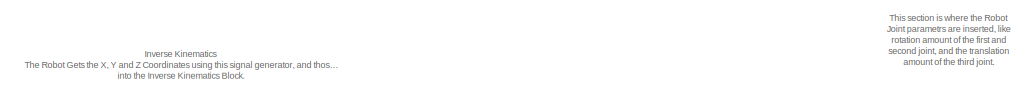
[diagram: root canvas - part 1/2, top left region]
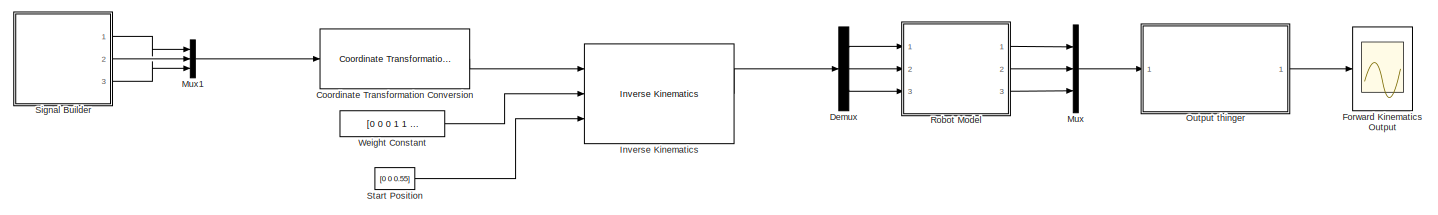
[diagram: root canvas - part 2/2, full width, bottom band]
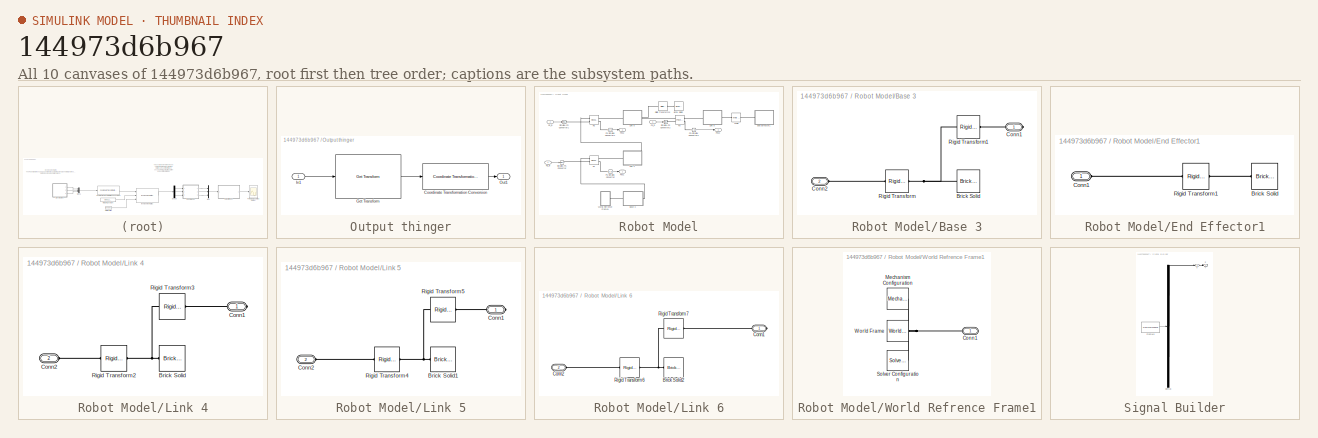
[diagram: thumbnail index - all 10 canvases of the model, root first then tree order]
MODEL slx_144973d6b967
KIND model
CONFIG AbsTol = auto
CONFIG EnableMultiTasking = off
CONFIG FixedStep = auto
CONFIG MaxStep = auto
CONFIG MinStep = auto
CONFIG RelTol = 1e-3
CONFIG SampleTimeConstraint = Unconstrained
CONFIG Solver = VariableStepAuto
CONFIG SolverName = VariableStepAuto
CONFIG StartTime = 0.0
CONFIG StopTime = 5
BLOCK [Reference] Coordinate Transformation Conversion  REF=robotcorelib/Coordinate Transformation Conversion
  Ports = [1, 1]
  SourceBlock = robotcorelib/Coordinate Transformation Conversion
  SourceProductBaseCode = RO
  SourceProductName = Robotics System Toolbox
  SourceType = robotics.slcore.internal.block.CoordinateTransformationConversion
BLOCK [Demux] Demux
  DisplayOption = bar
  Outputs = 3
  Ports = [1, 3]
BLOCK [Scope] Forward Kinematics Output
  Floating = off
  NumInputPorts = 1
  Ports = [1]
  ScopeSpecificationString = Simulink.scopes.TimeScopeBlockCfg('CurrentConfiguration', extmgr.ConfigurationSet(extmgr.Configuration('Core','General UI',true),extmgr.Configuration('Core','Source UI',true),extmgr.Configuration('Sources','WiredSimulink',true),extmgr.Configuration('Visuals','Time Domain',true,'SerializedDisplays',{struct('MinYLimReal','-0.49918','MaxYLimReal','0.25735','YLabelReal','','MinYLimMag','0.00000','MaxY...<+1398ch>
BLOCK [Reference] Inverse Kinematics  REF=robotmaniplib/Inverse Kinematics
  Ports = [3, 1]
  SourceBlock = robotmaniplib/Inverse Kinematics
  SourceProductBaseCode = RO
  SourceProductName = Robotics System Toolbox
  SourceType = Inverse Kinematics
BLOCK [Mux] Mux
  DisplayOption = bar
  Inputs = 3
  Ports = [3, 1]
BLOCK [Mux] Mux1
  DisplayOption = bar
  Inputs = 3
  Ports = [3, 1]
BLOCK [SubSystem] Output thinger
  Ports = [1, 1]
  RequestExecContextInheritance = off
BLOCK [Reference] Output thinger/Coordinate Transformation Conversion  REF=robotcorelib/Coordinate Transformation Conversion
  Ports = [1, 1]
  SourceBlock = robotcorelib/Coordinate Transformation Conversion
  SourceProductBaseCode = RO
  SourceProductName = Robotics System Toolbox
  SourceType = robotics.slcore.internal.block.CoordinateTransformationConversion
BLOCK [Reference] Output thinger/Get Transform  REF=robotmaniplib/Get Transform
  Ports = [1, 1]
  SourceBlock = robotmaniplib/Get Transform
  SourceProductBaseCode = RO
  SourceProductName = Robotics System Toolbox
  SourceType = Get Transform
BLOCK [Inport] Output thinger/In1
  IconDisplay = Port number
BLOCK [Outport] Output thinger/Out1
  IconDisplay = Port number
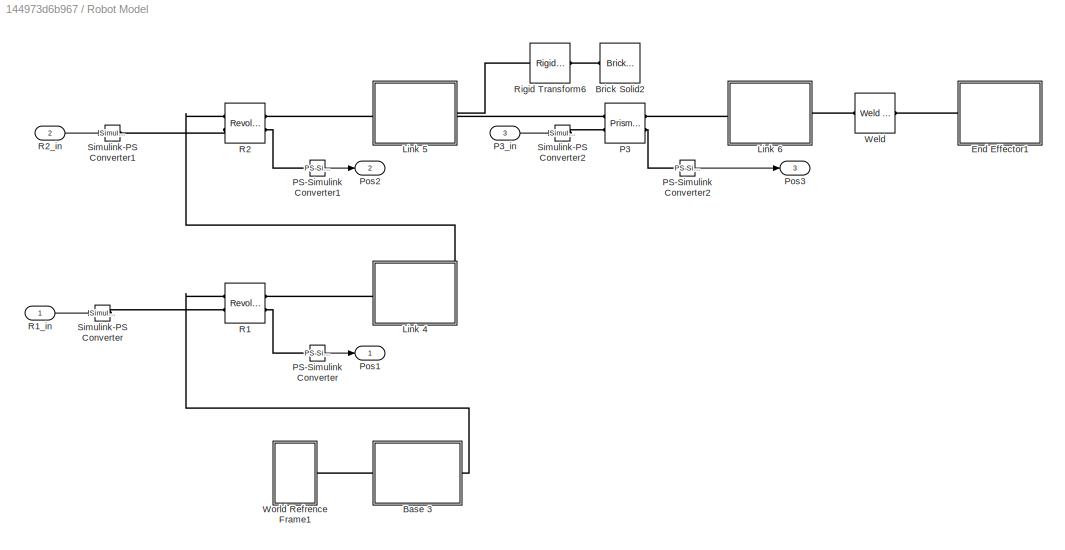
BLOCK [SubSystem] Robot Model
  Ports = [3, 3]
  RequestExecContextInheritance = off
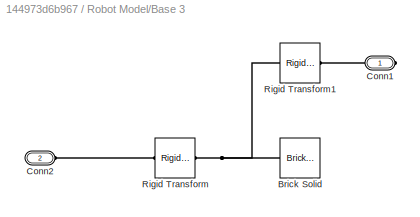
BLOCK [SubSystem] Robot Model/Base 3
  Ports = [0, 0, 0, 0, 0, 1, 1]
  RequestExecContextInheritance = off
BLOCK [Reference] Robot Model/Base 3/Brick Solid  REF=sm_lib/Body Elements/Brick Solid
  Ports = [0, 0, 0, 0, 0, 0, 1]
  SourceBlock = sm_lib/Body Elements/Brick Solid
  SourceProductBaseCode = MS
  SourceProductName = Simscape Multibody
  SourceType = Brick Solid
BLOCK [PMIOPort] Robot Model/Base 3/Conn1
  Side = Right
BLOCK [PMIOPort] Robot Model/Base 3/Conn2
  Port = 2
  Side = Left
BLOCK [Reference] Robot Model/Base 3/Rigid Transform  REF=sm_lib/Frames and
Transforms/Rigid
Transform
  Ports = [0, 0, 0, 0, 0, 1, 1]
  SourceBlock = sm_lib/Frames and\nTransforms/Rigid\nTransform
  SourceProductBaseCode = MS
  SourceProductName = Simscape Multibody
  SourceType = Rigid\nTransform
BLOCK [Reference] Robot Model/Base 3/Rigid Transform1  REF=sm_lib/Frames and
Transforms/Rigid
Transform
  Ports = [0, 0, 0, 0, 0, 1, 1]
  SourceBlock = sm_lib/Frames and\nTransforms/Rigid\nTransform
  SourceProductBaseCode = MS
  SourceProductName = Simscape Multibody
  SourceType = Rigid\nTransform
BLOCK [Reference] Robot Model/Brick Solid2  REF=sm_lib/Body Elements/Brick Solid
  Ports = [0, 0, 0, 0, 0, 0, 1]
  SourceBlock = sm_lib/Body Elements/Brick Solid
  SourceProductBaseCode = MS
  SourceProductName = Simscape Multibody
  SourceType = Brick Solid
BLOCK [SubSystem] Robot Model/End Effector1
  Ports = [0, 0, 0, 0, 0, 1]
  RequestExecContextInheritance = off
BLOCK [Reference] Robot Model/End Effector1/Brick Solid  REF=sm_lib/Body Elements/Brick Solid
  Ports = [0, 0, 0, 0, 0, 0, 1]
  SourceBlock = sm_lib/Body Elements/Brick Solid
  SourceProductBaseCode = MS
  SourceProductName = Simscape Multibody
  SourceType = Brick Solid
BLOCK [PMIOPort] Robot Model/End Effector1/Conn1
  Side = Left
BLOCK [Reference] Robot Model/End Effector1/Rigid Transform1  REF=sm_lib/Frames and
Transforms/Rigid
Transform
  Ports = [0, 0, 0, 0, 0, 1, 1]
  SourceBlock = sm_lib/Frames and\nTransforms/Rigid\nTransform
  SourceProductBaseCode = MS
  SourceProductName = Simscape Multibody
  SourceType = Rigid\nTransform
BLOCK [SubSystem] Robot Model/Link 4
  Ports = [0, 0, 0, 0, 0, 1, 1]
  RequestExecContextInheritance = off
BLOCK [Reference] Robot Model/Link 4/Brick Solid  REF=sm_lib/Body Elements/Brick Solid
  Ports = [0, 0, 0, 0, 0, 0, 1]
  SourceBlock = sm_lib/Body Elements/Brick Solid
  SourceProductBaseCode = MS
  SourceProductName = Simscape Multibody
  SourceType = Brick Solid
BLOCK [PMIOPort] Robot Model/Link 4/Conn1
  Side = Right
BLOCK [PMIOPort] Robot Model/Link 4/Conn2
  Port = 2
  Side = Left
BLOCK [Reference] Robot Model/Link 4/Rigid Transform2  REF=sm_lib/Frames and
Transforms/Rigid
Transform
  Ports = [0, 0, 0, 0, 0, 1, 1]
  SourceBlock = sm_lib/Frames and\nTransforms/Rigid\nTransform
  SourceProductBaseCode = MS
  SourceProductName = Simscape Multibody
  SourceType = Rigid\nTransform
BLOCK [Reference] Robot Model/Link 4/Rigid Transform3  REF=sm_lib/Frames and
Transforms/Rigid
Transform
  Ports = [0, 0, 0, 0, 0, 1, 1]
  SourceBlock = sm_lib/Frames and\nTransforms/Rigid\nTransform
  SourceProductBaseCode = MS
  SourceProductName = Simscape Multibody
  SourceType = Rigid\nTransform
BLOCK [SubSystem] Robot Model/Link 5
  Ports = [0, 0, 0, 0, 0, 1, 1]
  RequestExecContextInheritance = off
BLOCK [Reference] Robot Model/Link 5/Brick Solid1  REF=sm_lib/Body Elements/Brick Solid
  Ports = [0, 0, 0, 0, 0, 0, 1]
  SourceBlock = sm_lib/Body Elements/Brick Solid
  SourceProductBaseCode = MS
  SourceProductName = Simscape Multibody
  SourceType = Brick Solid
BLOCK [PMIOPort] Robot Model/Link 5/Conn1
  Side = Right
BLOCK [PMIOPort] Robot Model/Link 5/Conn2
  Port = 2
  Side = Left
BLOCK [Reference] Robot Model/Link 5/Rigid Transform4  REF=sm_lib/Frames and
Transforms/Rigid
Transform
  Ports = [0, 0, 0, 0, 0, 1, 1]
  SourceBlock = sm_lib/Frames and\nTransforms/Rigid\nTransform
  SourceProductBaseCode = MS
  SourceProductName = Simscape Multibody
  SourceType = Rigid\nTransform
BLOCK [Reference] Robot Model/Link 5/Rigid Transform5  REF=sm_lib/Frames and
Transforms/Rigid
Transform
  Ports = [0, 0, 0, 0, 0, 1, 1]
  SourceBlock = sm_lib/Frames and\nTransforms/Rigid\nTransform
  SourceProductBaseCode = MS
  SourceProductName = Simscape Multibody
  SourceType = Rigid\nTransform
BLOCK [SubSystem] Robot Model/Link 6
  Ports = [0, 0, 0, 0, 0, 1, 1]
  RequestExecContextInheritance = off
BLOCK [Reference] Robot Model/Link 6/Brick Solid2  REF=sm_lib/Body Elements/Brick Solid
  Ports = [0, 0, 0, 0, 0, 0, 1]
  SourceBlock = sm_lib/Body Elements/Brick Solid
  SourceProductBaseCode = MS
  SourceProductName = Simscape Multibody
  SourceType = Brick Solid
BLOCK [PMIOPort] Robot Model/Link 6/Conn1
  Side = Right
BLOCK [PMIOPort] Robot Model/Link 6/Conn2
  Port = 2
  Side = Left
BLOCK [Reference] Robot Model/Link 6/Rigid Transform6  REF=sm_lib/Frames and
Transforms/Rigid
Transform
  Ports = [0, 0, 0, 0, 0, 1, 1]
  SourceBlock = sm_lib/Frames and\nTransforms/Rigid\nTransform
  SourceProductBaseCode = MS
  SourceProductName = Simscape Multibody
  SourceType = Rigid\nTransform
BLOCK [Reference] Robot Model/Link 6/Rigid Transform7  REF=sm_lib/Frames and
Transforms/Rigid
Transform
  Ports = [0, 0, 0, 0, 0, 1, 1]
  SourceBlock = sm_lib/Frames and\nTransforms/Rigid\nTransform
  SourceProductBaseCode = MS
  SourceProductName = Simscape Multibody
  SourceType = Rigid\nTransform
BLOCK [Reference] Robot Model/P3  REF=sm_lib/Joints/Prismatic
Joint
  Ports = [0, 0, 0, 0, 0, 2, 2]
  SourceBlock = sm_lib/Joints/Prismatic\nJoint
  SourceProductBaseCode = MS
  SourceProductName = Simscape Multibody
  SourceType = Prismatic\nJoint
BLOCK [Inport] Robot Model/P3_in
  IconDisplay = Port number
  Port = 3
BLOCK [Reference] Robot Model/PS-Simulink Converter  REF=nesl_utility/PS-Simulink
Converter
  Ports = [0, 1, 0, 0, 0, 1]
  SourceBlock = nesl_utility/PS-Simulink\nConverter
  SourceProductBaseCode = SS
  SourceProductName = Simscape
  SourceType = PS-Simulink\nConverter
BLOCK [Reference] Robot Model/PS-Simulink Converter1  REF=nesl_utility/PS-Simulink
Converter
  Ports = [0, 1, 0, 0, 0, 1]
  SourceBlock = nesl_utility/PS-Simulink\nConverter
  SourceProductBaseCode = SS
  SourceProductName = Simscape
  SourceType = PS-Simulink\nConverter
BLOCK [Reference] Robot Model/PS-Simulink Converter2  REF=nesl_utility/PS-Simulink
Converter
  Ports = [0, 1, 0, 0, 0, 1]
  SourceBlock = nesl_utility/PS-Simulink\nConverter
  SourceProductBaseCode = SS
  SourceProductName = Simscape
  SourceType = PS-Simulink\nConverter
BLOCK [Outport] Robot Model/Pos1
  IconDisplay = Port number
BLOCK [Outport] Robot Model/Pos2
  IconDisplay = Port number
  Port = 2
BLOCK [Outport] Robot Model/Pos3
  IconDisplay = Port number
  Port = 3
BLOCK [Reference] Robot Model/R1  REF=sm_lib/Joints/Revolute Joint
  Ports = [0, 0, 0, 0, 0, 2, 2]
  SourceBlock = sm_lib/Joints/Revolute Joint
  SourceProductBaseCode = MS
  SourceProductName = Simscape Multibody
  SourceType = Revolute Joint
BLOCK [Inport] Robot Model/R1_in
  IconDisplay = Port number
BLOCK [Reference] Robot Model/R2  REF=sm_lib/Joints/Revolute Joint
  Ports = [0, 0, 0, 0, 0, 2, 2]
  SourceBlock = sm_lib/Joints/Revolute Joint
  SourceProductBaseCode = MS
  SourceProductName = Simscape Multibody
  SourceType = Revolute Joint
BLOCK [Inport] Robot Model/R2_in
  IconDisplay = Port number
  Port = 2
BLOCK [Reference] Robot Model/Rigid Transform6  REF=sm_lib/Frames and
Transforms/Rigid
Transform
  Ports = [0, 0, 0, 0, 0, 1, 1]
  SourceBlock = sm_lib/Frames and\nTransforms/Rigid\nTransform
  SourceProductBaseCode = MS
  SourceProductName = Simscape Multibody
  SourceType = Rigid\nTransform
BLOCK [Reference] Robot Model/Simulink-PS Converter  REF=nesl_utility/Simulink-PS
Converter
  Ports = [1, 0, 0, 0, 0, 0, 1]
  SourceBlock = nesl_utility/Simulink-PS\nConverter
  SourceProductBaseCode = SS
  SourceProductName = Simscape
  SourceType = Simulink-PS\nConverter
BLOCK [Reference] Robot Model/Simulink-PS Converter1  REF=nesl_utility/Simulink-PS
Converter
  Ports = [1, 0, 0, 0, 0, 0, 1]
  SourceBlock = nesl_utility/Simulink-PS\nConverter
  SourceProductBaseCode = SS
  SourceProductName = Simscape
  SourceType = Simulink-PS\nConverter
BLOCK [Reference] Robot Model/Simulink-PS Converter2  REF=nesl_utility/Simulink-PS
Converter
  Ports = [1, 0, 0, 0, 0, 0, 1]
  SourceBlock = nesl_utility/Simulink-PS\nConverter
  SourceProductBaseCode = SS
  SourceProductName = Simscape
  SourceType = Simulink-PS\nConverter
BLOCK [Reference] Robot Model/Weld   REF=sm_lib/Joints/Weld Joint
  Ports = [0, 0, 0, 0, 0, 1, 1]
  SourceBlock = sm_lib/Joints/Weld Joint
  SourceProductBaseCode = MS
  SourceProductName = Simscape Multibody
  SourceType = Weld Joint
BLOCK [SubSystem] Robot Model/World Refrence Frame1
  Ports = [0, 0, 0, 0, 0, 0, 1]
  RequestExecContextInheritance = off
BLOCK [PMIOPort] Robot Model/World Refrence Frame1/Conn1
  Side = Right
BLOCK [Reference] Robot Model/World Refrence Frame1/Mechanism Configuration  REF=sm_lib/Utilities/Mechanism
Configuration
  Ports = [0, 0, 0, 0, 0, 0, 1]
  SourceBlock = sm_lib/Utilities/Mechanism\nConfiguration
  SourceProductBaseCode = MS
  SourceProductName = Simscape Multibody
  SourceType = Mechanism\nConfiguration
BLOCK [Reference] Robot Model/World Refrence Frame1/Solver Configuration  REF=nesl_utility/Solver
Configuration
  Ports = [0, 0, 0, 0, 0, 0, 1]
  SourceBlock = nesl_utility/Solver\nConfiguration
  SourceProductBaseCode = SS
  SourceProductName = Simscape
  SourceType = Solver\nConfiguration
BLOCK [Reference] Robot Model/World Refrence Frame1/World Frame  REF=sm_lib/Frames and
Transforms/World Frame
  Ports = [0, 0, 0, 0, 0, 0, 1]
  SourceBlock = sm_lib/Frames and\nTransforms/World Frame
  SourceProductBaseCode = MS
  SourceProductName = Simscape Multibody
  SourceType = World Frame
BLOCK [SubSystem] Signal Builder
  ClipboardFcn = sigbuilder_block('clipboard');
  CloseFcn = sigbuilder_block('close');
  ContinueFcn = sigbuilder_block('continue');
  CopyFcn = sigbuilder_block('copy');
  DeleteFcn = sigbuilder_block('delete');
  LoadFcn = sigbuilder_block('load',[6 3 1428 685.5 ]);
  MaskHideContents = on
  ModelCloseFcn = sigbuilder_block('modelClose');
  NameChangeFcn = sigbuilder_block('namechange');
  OpenFcn = sigbuilder_block('open',[6 75 1428 648.75 ]);
  PauseFcn = sigbuilder_block('pause');
  Ports = [0, 3]
  PreSaveFcn = sigbuilder_block('preSave');
  RequestExecContextInheritance = off
  StartFcn = sigbuilder_block('start');
  StopFcn = sigbuilder_block('stop');
  Tag = STV Subsys
BLOCK [Demux] Signal Builder/Demux
  Outputs = 3
  Ports = [1, 3]
  Tag = STV Demux
BLOCK [FromWorkspace] Signal Builder/FromWs
  SampleTime = 0
  Tag = STV FromWs
  VariableName = tuvar
  ZeroCross = on
BLOCK [Outport] Signal Builder/X
  IconDisplay = Port number
  Tag = STV Outport
BLOCK [Outport] Signal Builder/Y
  IconDisplay = Port number
  Port = 2
  Tag = STV Outport
BLOCK [Outport] Signal Builder/Z
  IconDisplay = Port number
  Port = 3
  Tag = STV Outport
BLOCK [Constant] Start Position
  Value = [0 0 0.55]
BLOCK [Constant] Weight Constant
  Value = [0 0 0 1 1 1]
ANNOTATION (root): Inverse Kinematics The Robot Gets the X, Y and Z Coordinates using this signal generator, and those are transformed into a Homogeneous Matrix that is passed into the Inverse Kinematics Block.
ANNOTATION (root): This section is where the Robot Joint parametrs are inserted, like rotation amount of the first and second joint, and the translation amount of the third joint.
LINE Coordinate Transformation Conversion:1 -> Inverse Kinematics:1
LINE Demux:1 -> Robot Model:1
LINE Demux:2 -> Robot Model:2
LINE Demux:3 -> Robot Model:3
LINE Inverse Kinematics:1 -> Demux:1
LINE Mux1:1 -> Coordinate Transformation Conversion:1
LINE Mux:1 -> Output thinger:1
LINE Output thinger/Coordinate Transformation Conversion:1 -> Output thinger/Out1:1
LINE Output thinger/Get Transform:1 -> Output thinger/Coordinate Transformation Conversion:1
LINE Output thinger/In1:1 -> Output thinger/Get Transform:1
LINE Output thinger:1 -> Forward Kinematics Output:1
LINE Robot Model/P3_in:1 -> Robot Model/Simulink-PS Converter2:1
LINE Robot Model/PS-Simulink Converter1:1 -> Robot Model/Pos2:1
LINE Robot Model/PS-Simulink Converter2:1 -> Robot Model/Pos3:1
LINE Robot Model/PS-Simulink Converter:1 -> Robot Model/Pos1:1
LINE Robot Model/R1_in:1 -> Robot Model/Simulink-PS Converter:1
LINE Robot Model/R2_in:1 -> Robot Model/Simulink-PS Converter1:1
LINE Robot Model:1 -> Mux:1
LINE Robot Model:2 -> Mux:2
LINE Robot Model:3 -> Mux:3
LINE Signal Builder:1 -> Mux1:1
LINE Signal Builder:2 -> Mux1:2
LINE Signal Builder:3 -> Mux1:3
LINE Start Position:1 -> Inverse Kinematics:3
LINE Weight Constant:1 -> Inverse Kinematics:2
PNET net1: Robot Model/Base 3/Brick Solid:RConn1 -- Robot Model/Base 3/Rigid Transform1:LConn1 -- Robot Model/Base 3/Rigid Transform:RConn1
PLINE Robot Model/Base 3/Conn1:RConn1 -- Robot Model/Base 3/Rigid Transform1:RConn1
PLINE Robot Model/Base 3/Conn2:RConn1 -- Robot Model/Base 3/Rigid Transform:LConn1
PLINE Robot Model/Base 3:LConn1 -- Robot Model/World Refrence Frame1:RConn1
PLINE Robot Model/Base 3:RConn1 -- Robot Model/R1:LConn1
PLINE Robot Model/Brick Solid2:RConn1 -- Robot Model/Rigid Transform6:RConn1
PLINE Robot Model/End Effector1/Brick Solid:RConn1 -- Robot Model/End Effector1/Rigid Transform1:RConn1
PLINE Robot Model/End Effector1/Conn1:RConn1 -- Robot Model/End Effector1/Rigid Transform1:LConn1
PLINE Robot Model/End Effector1:LConn1 -- Robot Model/Weld :RConn1
PNET net2: Robot Model/Link 4/Brick Solid:RConn1 -- Robot Model/Link 4/Rigid Transform2:RConn1 -- Robot Model/Link 4/Rigid Transform3:LConn1
PLINE Robot Model/Link 4/Conn1:RConn1 -- Robot Model/Link 4/Rigid Transform3:RConn1
PLINE Robot Model/Link 4/Conn2:RConn1 -- Robot Model/Link 4/Rigid Transform2:LConn1
PLINE Robot Model/Link 4:LConn1 -- Robot Model/R1:RConn1
PLINE Robot Model/Link 4:RConn1 -- Robot Model/R2:LConn1
PNET net3: Robot Model/Link 5/Brick Solid1:RConn1 -- Robot Model/Link 5/Rigid Transform4:RConn1 -- Robot Model/Link 5/Rigid Transform5:LConn1
PLINE Robot Model/Link 5/Conn1:RConn1 -- Robot Model/Link 5/Rigid Transform5:RConn1
PLINE Robot Model/Link 5/Conn2:RConn1 -- Robot Model/Link 5/Rigid Transform4:LConn1
PLINE Robot Model/Link 5:LConn1 -- Robot Model/R2:RConn1
PNET net4: Robot Model/Link 5:RConn1 -- Robot Model/P3:LConn1 -- Robot Model/Rigid Transform6:LConn1
PNET net5: Robot Model/Link 6/Brick Solid2:RConn1 -- Robot Model/Link 6/Rigid Transform6:RConn1 -- Robot Model/Link 6/Rigid Transform7:LConn1
PLINE Robot Model/Link 6/Conn1:RConn1 -- Robot Model/Link 6/Rigid Transform7:RConn1
PLINE Robot Model/Link 6/Conn2:RConn1 -- Robot Model/Link 6/Rigid Transform6:LConn1
PLINE Robot Model/Link 6:LConn1 -- Robot Model/P3:RConn1
PLINE Robot Model/Link 6:RConn1 -- Robot Model/Weld :LConn1
PLINE Robot Model/P3:LConn2 -- Robot Model/Simulink-PS Converter2:RConn1
PLINE Robot Model/P3:RConn2 -- Robot Model/PS-Simulink Converter2:LConn1
PLINE Robot Model/PS-Simulink Converter1:LConn1 -- Robot Model/R2:RConn2
PLINE Robot Model/PS-Simulink Converter:LConn1 -- Robot Model/R1:RConn2
PLINE Robot Model/R1:LConn2 -- Robot Model/Simulink-PS Converter:RConn1
PLINE Robot Model/R2:LConn2 -- Robot Model/Simulink-PS Converter1:RConn1
PNET net6: Robot Model/World Refrence Frame1/Conn1:RConn1 -- Robot Model/World Refrence Frame1/Mechanism Configuration:RConn1 -- Robot Model/World Refrence Frame1/Solver Configuration:RConn1 -- Robot Model/World Refrence Frame1/World Frame:RConn1
note: PNET lines group multi-terminal physical nets as a canonical sorted terminal list (undirected conserving connections); 2-terminal nets keep the pairwise PLINE form
